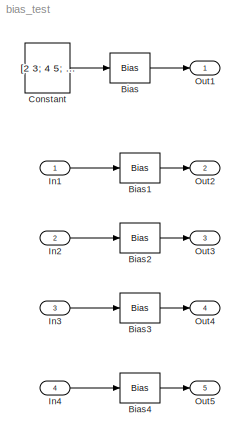
MODEL bias_test
KIND model
BLOCK [Bias] Bias
  Bias = 2
  SID = 6
  SaturateOnIntegerOverflow = off
BLOCK [Bias] Bias1
  Bias = [2 4]
  SID = 12
  SaturateOnIntegerOverflow = off
BLOCK [Bias] Bias2
  Bias = [true false]
  SID = 15
  SaturateOnIntegerOverflow = off
BLOCK [Bias] Bias3
  Bias = [2 4]
  SID = 18
  SaturateOnIntegerOverflow = off
BLOCK [Bias] Bias4
  Bias = 6
  SID = 21
  SaturateOnIntegerOverflow = off
BLOCK [Constant] Constant
  SID = 4
  Value = [2 3; 4 5; 7 9]
BLOCK [Inport] In1
  IconDisplay = Port number
  SID = 13
BLOCK [Inport] In2
  IconDisplay = Port number
  Port = 2
  SID = 14
BLOCK [Inport] In3
  IconDisplay = Port number
  OutDataTypeStr = double
  Port = 3
  SID = 17
BLOCK [Inport] In4
  IconDisplay = Port number
  OutDataTypeStr = uint8
  Port = 4
  PortDimensions = 3
  SID = 20
BLOCK [Outport] Out1
  IconDisplay = Port number
  SID = 3
BLOCK [Outport] Out2
  IconDisplay = Port number
  Port = 2
  SID = 7
BLOCK [Outport] Out3
  IconDisplay = Port number
  Port = 3
  SID = 16
BLOCK [Outport] Out4
  IconDisplay = Port number
  Port = 4
  SID = 19
BLOCK [Outport] Out5
  IconDisplay = Port number
  Port = 5
  SID = 22
LINE Bias1:1 -> Out2:1
LINE Bias2:1 -> Out3:1
LINE Bias3:1 -> Out4:1
LINE Bias4:1 -> Out5:1
LINE Bias:1 -> Out1:1
LINE Constant:1 -> Bias:1
LINE In1:1 -> Bias1:1
LINE In2:1 -> Bias2:1
LINE In3:1 -> Bias3:1
LINE In4:1 -> Bias4:1
